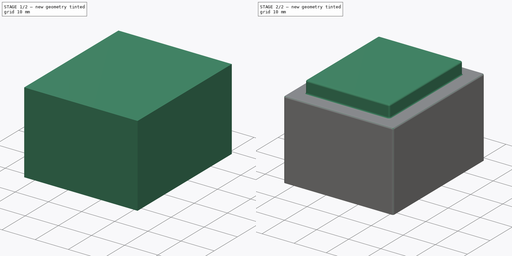
[diagram: build sequence overview — one tinted view per stage of 2, left to right]
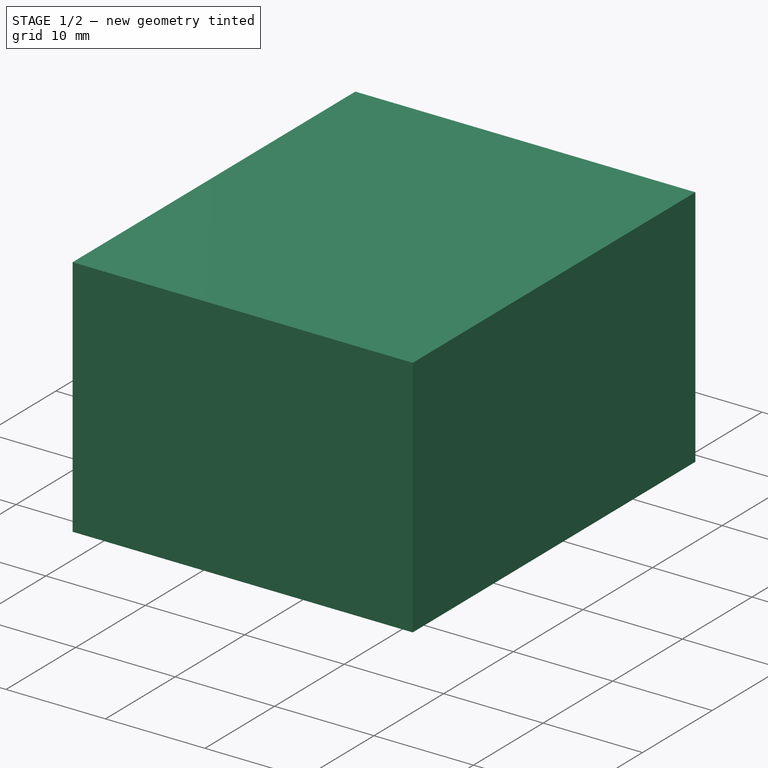
[diagram: stage 1 of 2 — iso view after this stage's code; geometry added in this stage tinted green]
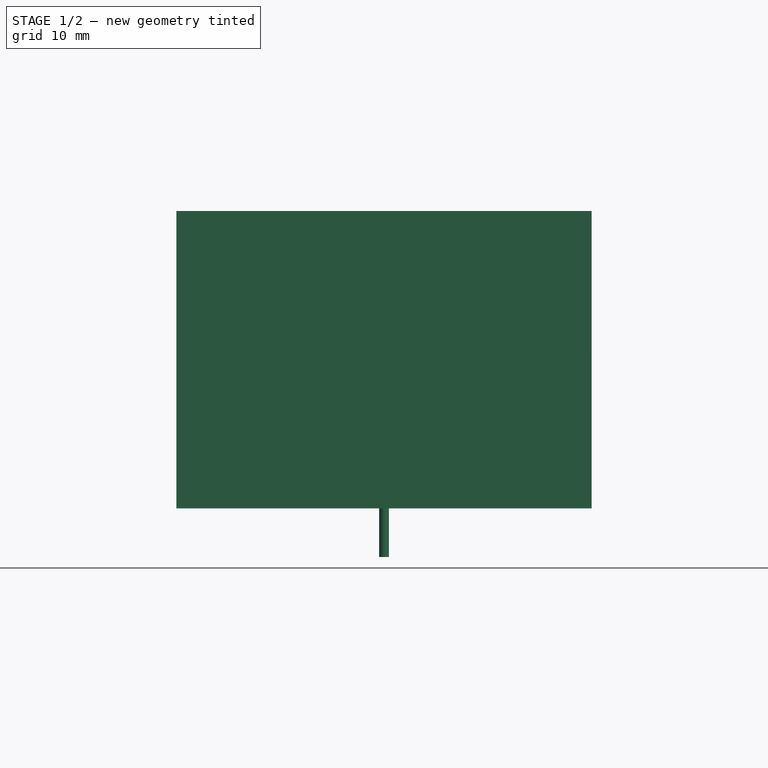
[diagram: stage 1 of 2 — front view after this stage's code; geometry added in this stage tinted green]
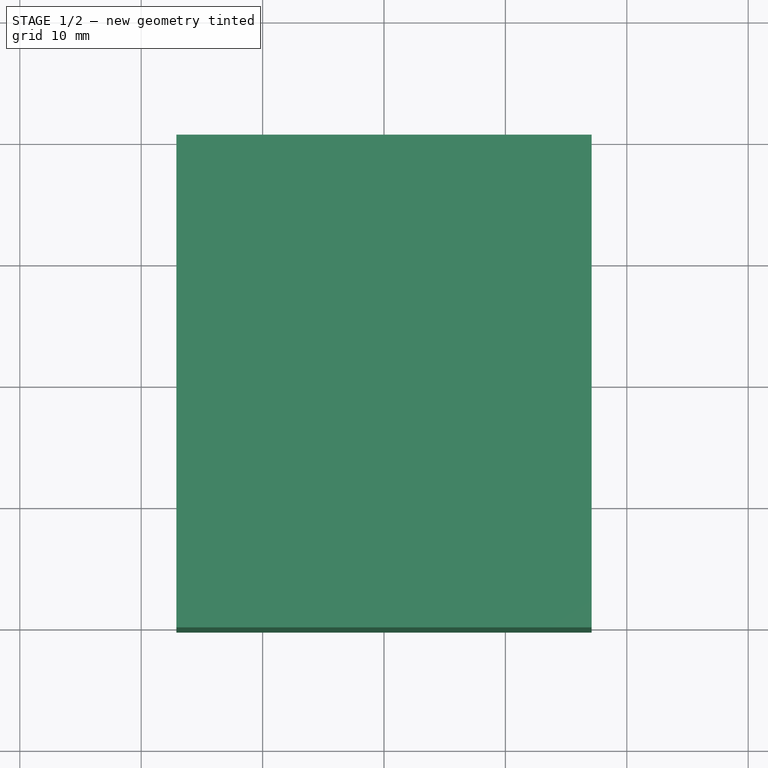
[diagram: stage 1 of 2 — top view after this stage's code; geometry added in this stage tinted green]
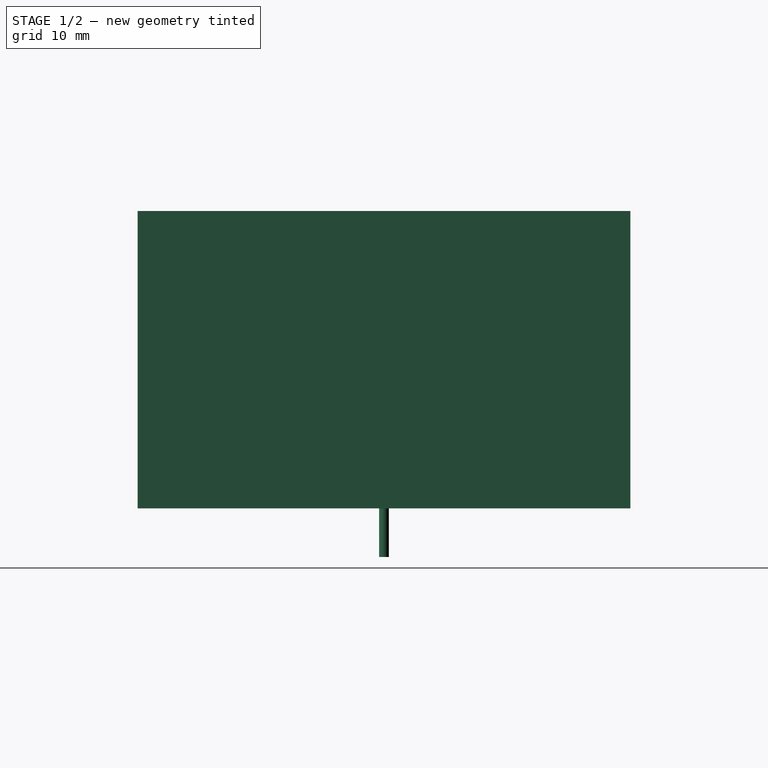
[diagram: stage 1 of 2 — right view after this stage's code; geometry added in this stage tinted green]
FCSTD DOCUMENT  (FreeCAD 0.19R21125 (Git))
Label: TRANSFORMER_NF_GERTH_387.XX
License: All rights reserved
LicenseURL: http://en.wikipedia.org/wiki/All_rights_reserved
objects: Sketcher::SketchObject×3, PartDesign::Pad×3, App::Link×3, PartDesign::Body×2, PartDesign::Fillet×1, PartDesign::ShapeBinder×1
note: 14 computed .brp shape members not serialized (recipe doc carries the construction recipe); baked Part::Feature solids carry a one-line shape summary decoded from their .brp

FEATURE [Sketcher::SketchObject] Sketch
  MapMode = 5
  Support = -> [XY_Plane]
  sketch-geometry (4):
    g0: LineSegment StartX=-17.1 StartY=20.3 StartZ=0 EndX=17.1 EndY=20.3 EndZ=0
    g1: LineSegment StartX=17.1 StartY=20.3 StartZ=0 EndX=17.1 EndY=-20.3 EndZ=0
    g2: LineSegment StartX=17.1 StartY=-20.3 StartZ=0 EndX=-17.1 EndY=-20.3 EndZ=0
    g3: LineSegment StartX=-17.1 StartY=-20.3 StartZ=0 EndX=-17.1 EndY=20.3 EndZ=0
  constraints (10):
    c: Coincident(g0,g1)
    c: Coincident(g1,g2)
    c: Coincident(g2,g3)
    c: Coincident(g3,g0)
    c: Horizontal(g2)
    c: Vertical(g3)
    c: DistanceY(g1,g1) = 40.6
    c: DistanceX(g0,g0) = 34.2
    c: Symmetric(g0,g1,g-1)
    c: Symmetric(g0,g0,g-2)
FEATURE [PartDesign::Pad] Pad
  Length = 24.5
  Length2 = 100
  Profile = -> Sketch
  Type = 0
FEATURE [PartDesign::Body] Body  label="Gehaeuse"
  Group = -> [Sketch,Pad,Sketch001,Pad001,Fillet]
  Origin = -> Origin
  Tip = -> Fillet
FEATURE [PartDesign::ShapeBinder] CopyFillet
  TraceSupport = false
FEATURE [Sketcher::SketchObject] Sketch002
  MapMode = 5
  Placement = pos=(0,0,0) rot=(1,0,0;3.14159rad)
  Support = -> [CopyFillet]
  sketch-geometry (1):
    g0: Circle CenterX=0 CenterY=0 CenterZ=0 NormalX=0 NormalY=0 NormalZ=1 AngleXU=0 Radius=0.4
  constraints (2):
    c: Diameter(g0) = 0.8
    c: Coincident(g-1,g0)
FEATURE [PartDesign::Pad] Pad002
  Length = 4
  Length2 = 100
  Profile = -> Sketch002
  Type = 0
FEATURE [PartDesign::Body] Body001  label="Pin 9"
  Group = -> [CopyFillet,Sketch002,Pad002]
  Origin = -> Origin001
  Placement = pos=(-13.75,-5,0) rot=(0,0,1;0rad)
  Tip = -> Pad002
FEATURE [App::Link] Link  label="Pin 7"
  LinkPlacement = pos=(-13.75,5,0) rot=(0,0,1;0rad)
  LinkedObject = -> Body001
  Placement = pos=(-13.75,5,0) rot=(0,0,1;0rad)
FEATURE [App::Link] Link001  label="Pin 1"
  LinkPlacement = pos=(13.75,-10,0) rot=(0,0,1;0rad)
  LinkedObject = -> Body001
  Placement = pos=(13.75,-10,0) rot=(0,0,1;0rad)
FEATURE [App::Link] Link002  label="Pin 5"
  LinkPlacement = pos=(13.75,10,0) rot=(0,0,1;0rad)
  LinkedObject = -> Body001
  Placement = pos=(13.75,10,0) rot=(0,0,1;0rad)
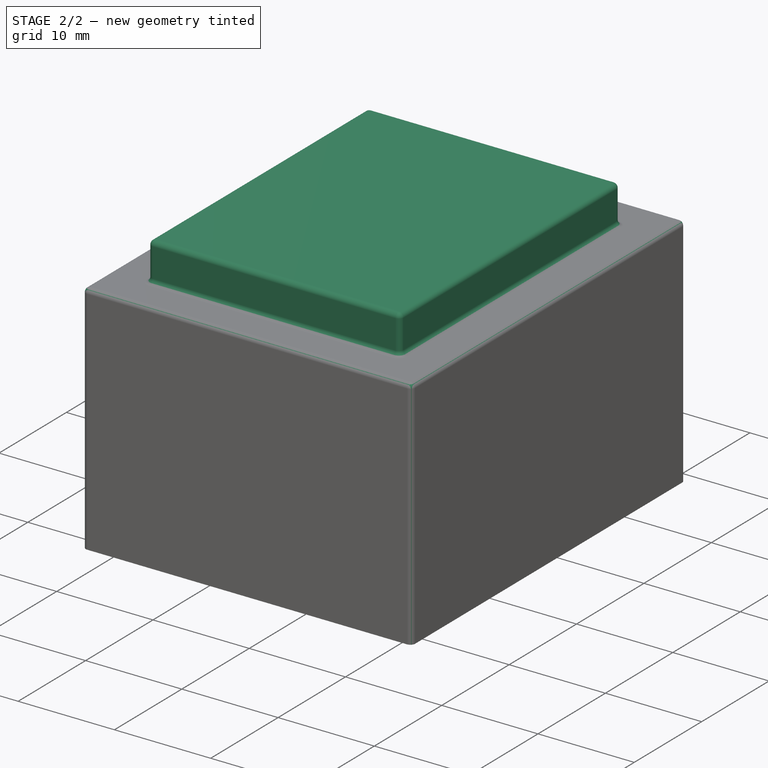
[diagram: stage 2 of 2 — iso view after this stage's code; geometry added in this stage tinted green]
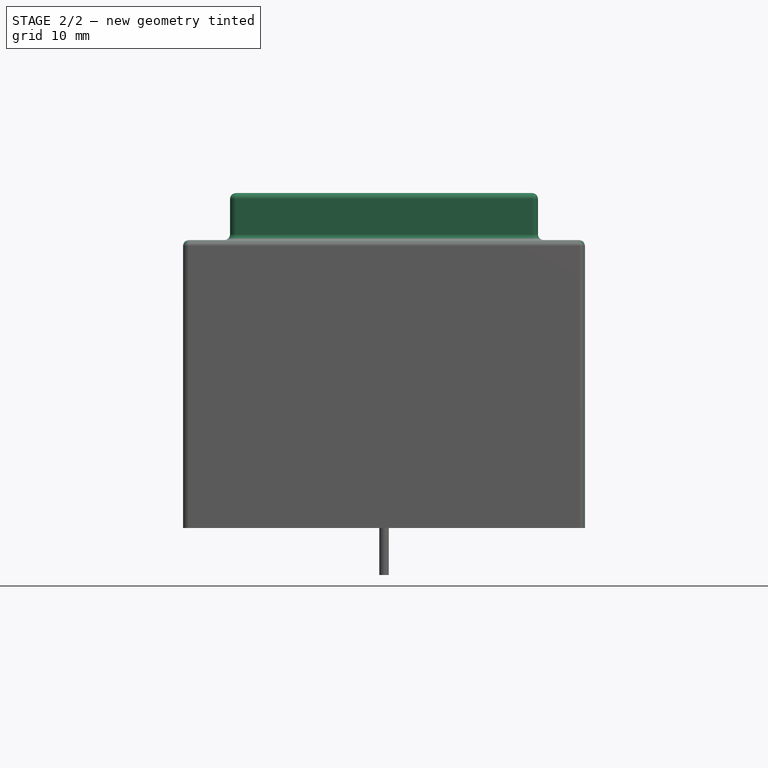
[diagram: stage 2 of 2 — front view after this stage's code; geometry added in this stage tinted green]
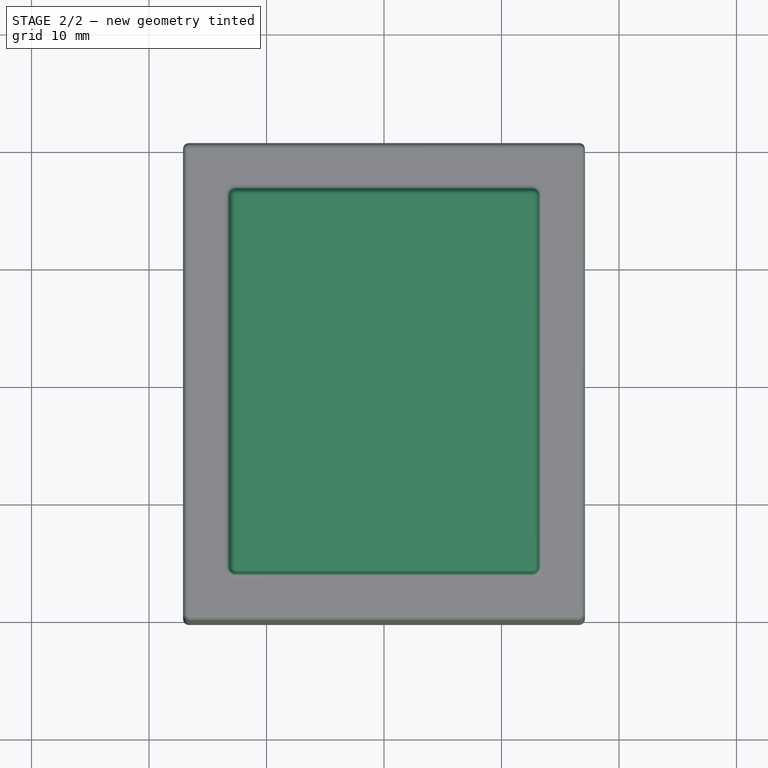
[diagram: stage 2 of 2 — top view after this stage's code; geometry added in this stage tinted green]
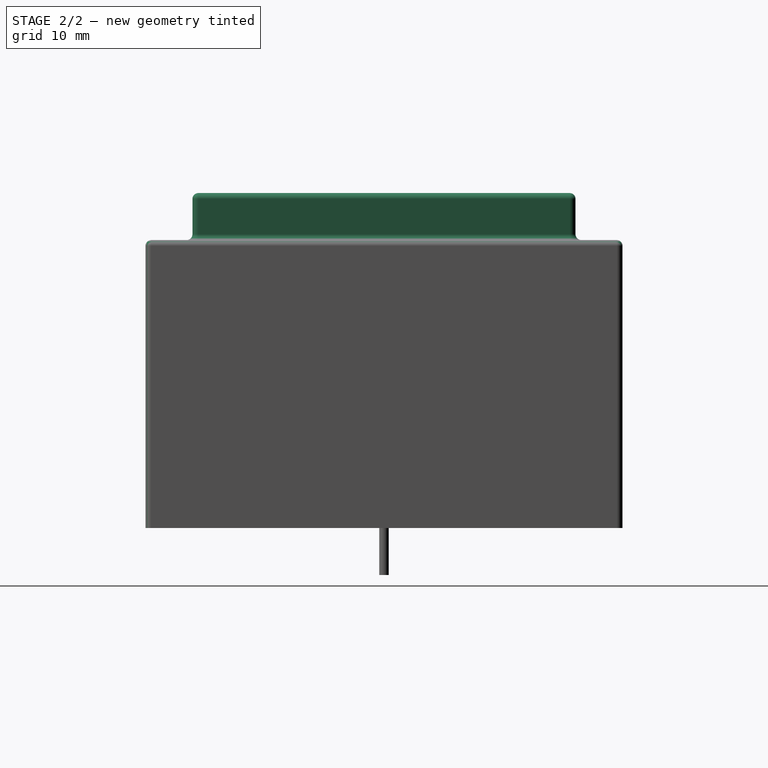
[diagram: stage 2 of 2 — right view after this stage's code; geometry added in this stage tinted green]
FEATURE [Sketcher::SketchObject] Sketch001
  MapMode = 5
  Placement = pos=(0,0,24.5) rot=(0,0,1;0rad)
  Support = -> [Pad]
  sketch-geometry (4):
    g0: LineSegment StartX=-13.1 StartY=16.3 StartZ=0 EndX=13.1 EndY=16.3 EndZ=0
    g1: LineSegment StartX=13.1 StartY=16.3 StartZ=0 EndX=13.1 EndY=-16.3 EndZ=0
    g2: LineSegment StartX=13.1 StartY=-16.3 StartZ=0 EndX=-13.1 EndY=-16.3 EndZ=0
    g3: LineSegment StartX=-13.1 StartY=-16.3 StartZ=0 EndX=-13.1 EndY=16.3 EndZ=0
  constraints (10):
    c: Coincident(g0,g1)
    c: Coincident(g1,g2)
    c: Coincident(g2,g3)
    c: Coincident(g3,g0)
    c: Horizontal(g0)
    c: Vertical(g1)
    c: DistanceY(g1,g1) = 32.6
    c: DistanceX(g0,g0) = 26.2
    c: Symmetric(g0,g2,g-1)
    c: Symmetric(g2,g1,g-2)
FEATURE [PartDesign::Pad] Pad001
  BaseFeature = -> Pad
  Length = 4
  Length2 = 100
  Profile = -> Sketch001
  Type = 0
FEATURE [PartDesign::Fillet] Fillet
  Base = -> Pad001 [Edge23,Edge24,Edge21,Edge19,Edge4,Edge10,Edge12,Edge7,Edge22,Edge15,Edge20,Edge14,Edge18,Edge13,Edge17,Edge16,Edge1,Edge8,Edge2,Edge5]
  BaseFeature = -> Pad001
  Radius = 0.5
  SupportTransform = true
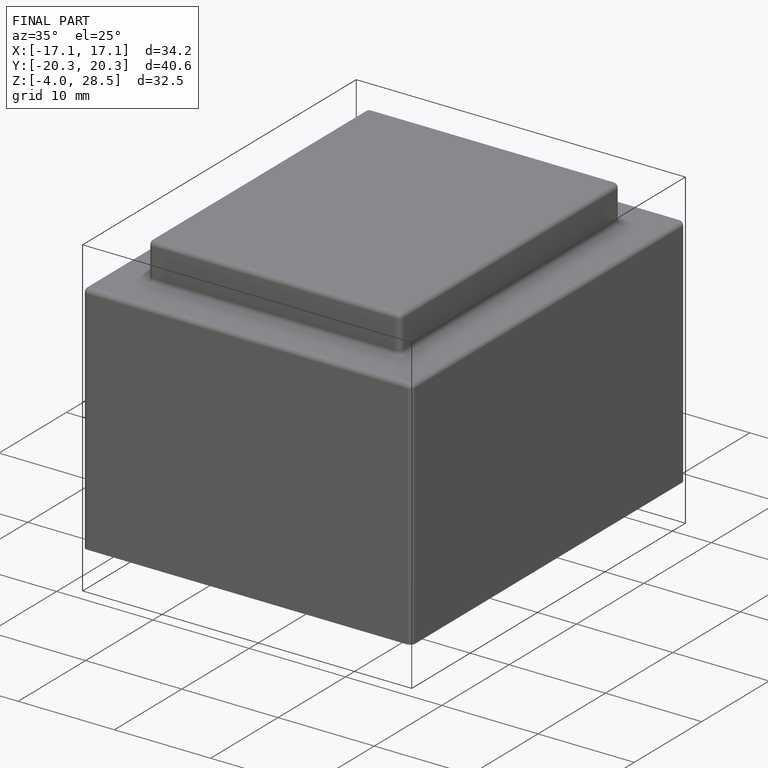
[diagram: finished part — iso view with bounding-box wireframe]
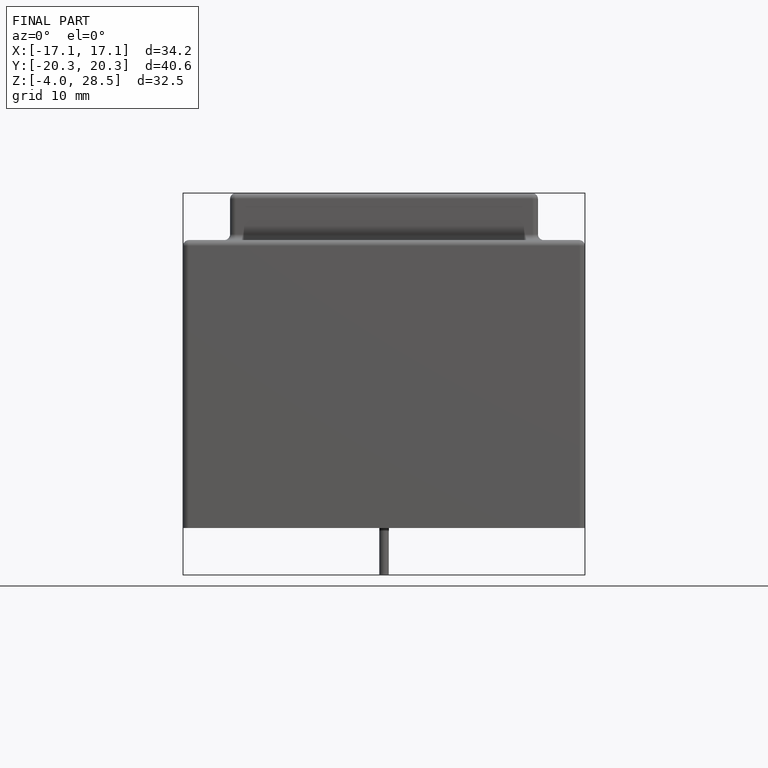
[diagram: finished part — front view with bounding-box wireframe]
